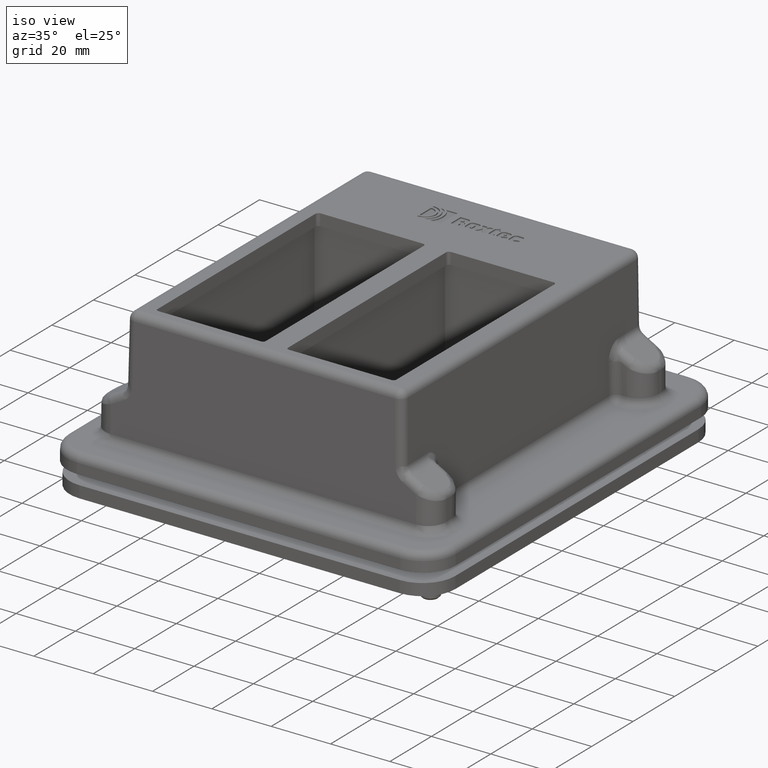
[diagram: clean part render]
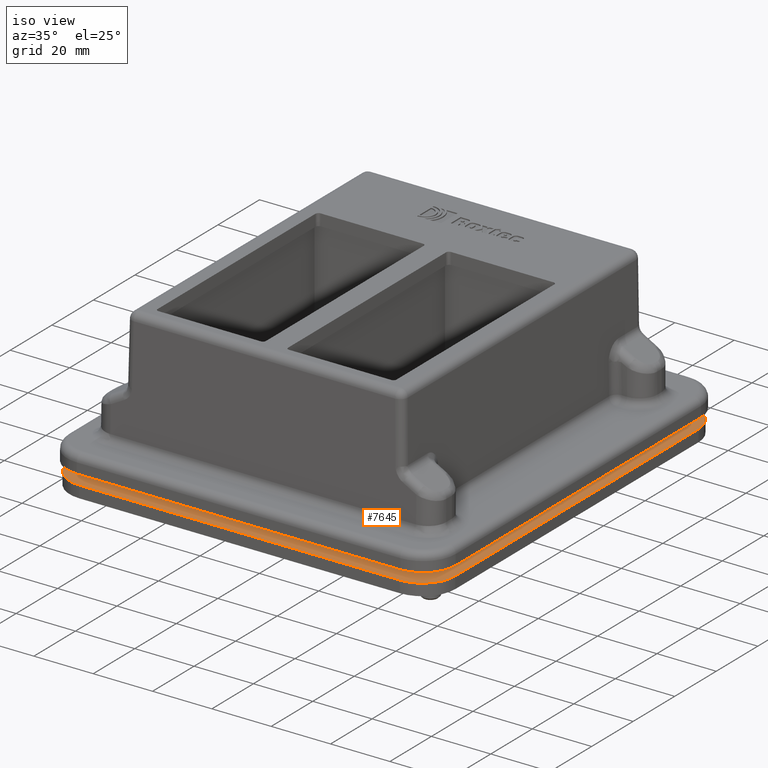
[diagram: same view with one face highlighted and labeled with its STEP entity id]
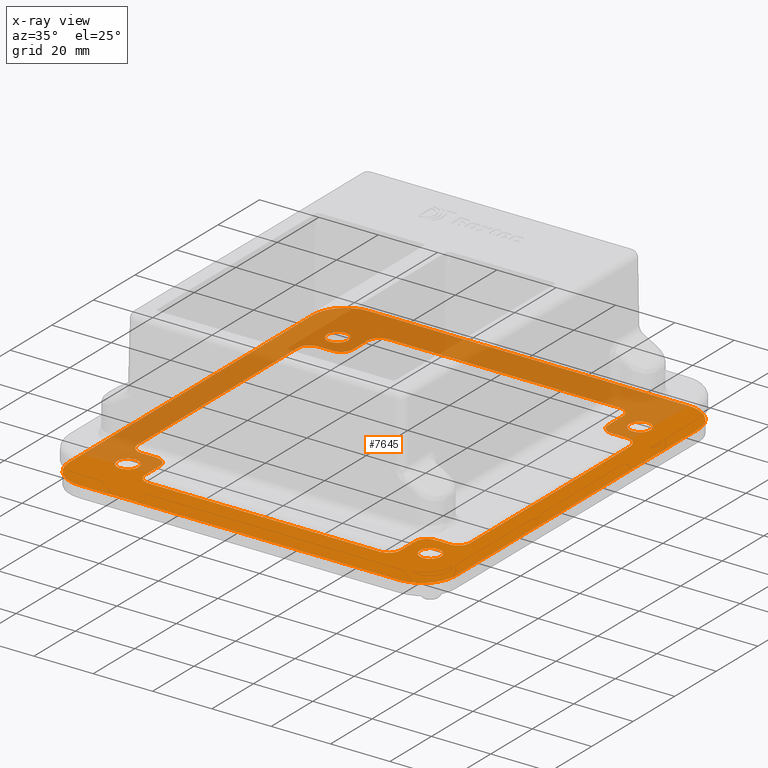
[diagram: x-ray of the same camera — body ghosted, the highlighted face saturated]
A machine part, iso view. The second image highlights one B-rep face of the part: STEP entity #7645.
The next image is the same camera in x-ray: the body ghosted, the highlighted face saturated — about 48% of this face is hidden behind the body in this view.
In plain terms, the highlighted planar face has unit normal (0, -0, 1).
Its self-contained STEP definition (entity closure, byte-faithful):
#357=LINE('',#11266,#1001);
#359=LINE('',#11271,#1003);
#360=LINE('',#11275,#1004);
#361=LINE('',#11279,#1005);
#362=LINE('',#11283,#1006);
#363=LINE('',#11288,#1007);
#364=LINE('',#11292,#1008);
#365=LINE('',#11296,#1009);
#366=LINE('',#11300,#1010);
#367=LINE('',#11304,#1011);
#368=LINE('',#11308,#1012);
#369=LINE('',#11312,#1013);
#370=LINE('',#11316,#1014);
#371=LINE('',#11320,#1015);
#372=LINE('',#11324,#1016);
#373=LINE('',#11328,#1017);
#1001=VECTOR('',#9053,10.);
#1003=VECTOR('',#9057,10.);
#1004=VECTOR('',#9060,10.);
#1005=VECTOR('',#9063,10.);
#1006=VECTOR('',#9066,10.);
#1007=VECTOR('',#9071,10.);
#1008=VECTOR('',#9074,10.);
#1009=VECTOR('',#9077,10.);
#1010=VECTOR('',#9080,10.);
#1011=VECTOR('',#9083,10.);
#1012=VECTOR('',#9086,10.);
#1013=VECTOR('',#9089,10.);
#1014=VECTOR('',#9092,10.);
#1015=VECTOR('',#9095,10.);
#1016=VECTOR('',#9098,10.);
#1017=VECTOR('',#9101,10.);
#1721=FACE_BOUND('',#2284,.T.);
#1722=FACE_BOUND('',#2285,.T.);
#1723=FACE_BOUND('',#2286,.T.);
#1724=FACE_BOUND('',#2287,.T.);
#1725=FACE_BOUND('',#2288,.T.);
#1830=FACE_OUTER_BOUND('',#2283,.T.);
#2283=EDGE_LOOP('',(#5071,#5072,#5073,#5074,#5075,#5076,#5077,#5078));
#2284=EDGE_LOOP('',(#5079));
#2285=EDGE_LOOP('',(#5080,#5081,#5082,#5083,#5084,#5085,#5086,#5087,#5088,
#5089,#5090,#5091,#5092,#5093,#5094,#5095,#5096,#5097,#5098,#5099,#5100,
#5101,#5102,#5103));
#2286=EDGE_LOOP('',(#5104));
#2287=EDGE_LOOP('',(#5105));
#2288=EDGE_LOOP('',(#5106));
#2763=CIRCLE('',#8178,3.5);
#2764=CIRCLE('',#8181,11.);
#2765=CIRCLE('',#8182,11.);
#2766=CIRCLE('',#8183,11.);
#2767=CIRCLE('',#8184,11.);
#2768=CIRCLE('',#8185,4.);
#2769=CIRCLE('',#8186,4.);
#2770=CIRCLE('',#8187,4.);
#2771=CIRCLE('',#8188,4.);
#2772=CIRCLE('',#8189,4.);
#2773=CIRCLE('',#8190,4.);
#2774=CIRCLE('',#8191,4.);
#2775=CIRCLE('',#8192,4.);
#2776=CIRCLE('',#8193,4.);
#2777=CIRCLE('',#8194,4.);
#2778=CIRCLE('',#8195,4.);
#2779=CIRCLE('',#8196,4.);
#2780=CIRCLE('',#8197,3.5);
#2781=CIRCLE('',#8198,3.5);
#2782=CIRCLE('',#8199,3.5);
#3076=VERTEX_POINT('',#11259);
#3077=VERTEX_POINT('',#11263);
#3078=VERTEX_POINT('',#11265);
#3079=VERTEX_POINT('',#11269);
#3080=VERTEX_POINT('',#11270);
#3081=VERTEX_POINT('',#11272);
#3082=VERTEX_POINT('',#11274);
#3083=VERTEX_POINT('',#11276);
#3084=VERTEX_POINT('',#11278);
#3085=VERTEX_POINT('',#11280);
#3086=VERTEX_POINT('',#11282);
#3087=VERTEX_POINT('',#11285);
#3088=VERTEX_POINT('',#11287);
#3089=VERTEX_POINT('',#11289);
#3090=VERTEX_POINT('',#11291);
#3091=VERTEX_POINT('',#11293);
#3092=VERTEX_POINT('',#11295);
#3093=VERTEX_POINT('',#11297);
#3094=VERTEX_POINT('',#11299);
#3095=VERTEX_POINT('',#11301);
#3096=VERTEX_POINT('',#11303);
#3097=VERTEX_POINT('',#11305);
#3098=VERTEX_POINT('',#11307);
#3099=VERTEX_POINT('',#11309);
#3100=VERTEX_POINT('',#11311);
#3101=VERTEX_POINT('',#11313);
#3102=VERTEX_POINT('',#11315);
#3103=VERTEX_POINT('',#11317);
#3104=VERTEX_POINT('',#11319);
#3105=VERTEX_POINT('',#11321);
#3106=VERTEX_POINT('',#11323);
#3107=VERTEX_POINT('',#11325);
#3108=VERTEX_POINT('',#11327);
#3109=VERTEX_POINT('',#11330);
#3110=VERTEX_POINT('',#11332);
#3111=VERTEX_POINT('',#11334);
#3828=EDGE_CURVE('',#3076,#3076,#2763,.T.);
#3830=EDGE_CURVE('',#3078,#3077,#357,.T.);
#3832=EDGE_CURVE('',#3079,#3080,#359,.T.);
#3833=EDGE_CURVE('',#3081,#3080,#2764,.T.);
#3834=EDGE_CURVE('',#3081,#3082,#360,.T.);
#3835=EDGE_CURVE('',#3083,#3082,#2765,.T.);
#3836=EDGE_CURVE('',#3083,#3084,#361,.T.);
#3837=EDGE_CURVE('',#3085,#3084,#2766,.T.);
#3838=EDGE_CURVE('',#3085,#3086,#362,.T.);
#3839=EDGE_CURVE('',#3079,#3086,#2767,.T.);
#3840=EDGE_CURVE('',#3087,#3077,#2768,.T.);
#3841=EDGE_CURVE('',#3087,#3088,#363,.T.);
#3842=EDGE_CURVE('',#3089,#3088,#2769,.T.);
#3843=EDGE_CURVE('',#3089,#3090,#364,.T.);
#3844=EDGE_CURVE('',#3091,#3090,#2770,.T.);
#3845=EDGE_CURVE('',#3091,#3092,#365,.T.);
#3846=EDGE_CURVE('',#3093,#3092,#2771,.T.);
#3847=EDGE_CURVE('',#3093,#3094,#366,.T.);
#3848=EDGE_CURVE('',#3095,#3094,#2772,.T.);
#3849=EDGE_CURVE('',#3095,#3096,#367,.T.);
#3850=EDGE_CURVE('',#3097,#3096,#2773,.T.);
#3851=EDGE_CURVE('',#3097,#3098,#368,.T.);
#3852=EDGE_CURVE('',#3099,#3098,#2774,.T.);
#3853=EDGE_CURVE('',#3099,#3100,#369,.T.);
#3854=EDGE_CURVE('',#3101,#3100,#2775,.T.);
#3855=EDGE_CURVE('',#3101,#3102,#370,.T.);
#3856=EDGE_CURVE('',#3103,#3102,#2776,.T.);
#3857=EDGE_CURVE('',#3103,#3104,#371,.T.);
#3858=EDGE_CURVE('',#3105,#3104,#2777,.T.);
#3859=EDGE_CURVE('',#3105,#3106,#372,.T.);
#3860=EDGE_CURVE('',#3107,#3106,#2778,.T.);
#3861=EDGE_CURVE('',#3107,#3108,#373,.T.);
#3862=EDGE_CURVE('',#3078,#3108,#2779,.T.);
#3863=EDGE_CURVE('',#3109,#3109,#2780,.T.);
#3864=EDGE_CURVE('',#3110,#3110,#2781,.T.);
#3865=EDGE_CURVE('',#3111,#3111,#2782,.T.);
#5071=ORIENTED_EDGE('',*,*,#3832,.T.);
#5072=ORIENTED_EDGE('',*,*,#3833,.F.);
#5073=ORIENTED_EDGE('',*,*,#3834,.T.);
#5074=ORIENTED_EDGE('',*,*,#3835,.F.);
#5075=ORIENTED_EDGE('',*,*,#3836,.T.);
#5076=ORIENTED_EDGE('',*,*,#3837,.F.);
#5077=ORIENTED_EDGE('',*,*,#3838,.T.);
#5078=ORIENTED_EDGE('',*,*,#3839,.F.);
#5079=ORIENTED_EDGE('',*,*,#3828,.T.);
#5080=ORIENTED_EDGE('',*,*,#3830,.T.);
#5081=ORIENTED_EDGE('',*,*,#3840,.F.);
#5082=ORIENTED_EDGE('',*,*,#3841,.T.);
#5083=ORIENTED_EDGE('',*,*,#3842,.F.);
#5084=ORIENTED_EDGE('',*,*,#3843,.T.);
#5085=ORIENTED_EDGE('',*,*,#3844,.F.);
#5086=ORIENTED_EDGE('',*,*,#3845,.T.);
#5087=ORIENTED_EDGE('',*,*,#3846,.F.);
#5088=ORIENTED_EDGE('',*,*,#3847,.T.);
#5089=ORIENTED_EDGE('',*,*,#3848,.F.);
#5090=ORIENTED_EDGE('',*,*,#3849,.T.);
#5091=ORIENTED_EDGE('',*,*,#3850,.F.);
#5092=ORIENTED_EDGE('',*,*,#3851,.T.);
#5093=ORIENTED_EDGE('',*,*,#3852,.F.);
#5094=ORIENTED_EDGE('',*,*,#3853,.T.);
#5095=ORIENTED_EDGE('',*,*,#3854,.F.);
#5096=ORIENTED_EDGE('',*,*,#3855,.T.);
#5097=ORIENTED_EDGE('',*,*,#3856,.F.);
#5098=ORIENTED_EDGE('',*,*,#3857,.T.);
#5099=ORIENTED_EDGE('',*,*,#3858,.F.);
#5100=ORIENTED_EDGE('',*,*,#3859,.T.);
#5101=ORIENTED_EDGE('',*,*,#3860,.F.);
#5102=ORIENTED_EDGE('',*,*,#3861,.T.);
#5103=ORIENTED_EDGE('',*,*,#3862,.F.);
#5104=ORIENTED_EDGE('',*,*,#3863,.T.);
#5105=ORIENTED_EDGE('',*,*,#3864,.T.);
#5106=ORIENTED_EDGE('',*,*,#3865,.T.);
#6941=PLANE('',#8180);
#7645=ADVANCED_FACE('',(#1830,#1721,#1722,#1723,#1724,#1725),#6941,.T.);
#8178=AXIS2_PLACEMENT_3D('',#11261,#9048,#9049);
#8180=AXIS2_PLACEMENT_3D('',#11268,#9055,#9056);
#8181=AXIS2_PLACEMENT_3D('',#11273,#9058,#9059);
#8182=AXIS2_PLACEMENT_3D('',#11277,#9061,#9062);
#8183=AXIS2_PLACEMENT_3D('',#11281,#9064,#9065);
#8184=AXIS2_PLACEMENT_3D('',#11284,#9067,#9068);
#8185=AXIS2_PLACEMENT_3D('',#11286,#9069,#9070);
#8186=AXIS2_PLACEMENT_3D('',#11290,#9072,#9073);
#8187=AXIS2_PLACEMENT_3D('',#11294,#9075,#9076);
#8188=AXIS2_PLACEMENT_3D('',#11298,#9078,#9079);
#8189=AXIS2_PLACEMENT_3D('',#11302,#9081,#9082);
#8190=AXIS2_PLACEMENT_3D('',#11306,#9084,#9085);
#8191=AXIS2_PLACEMENT_3D('',#11310,#9087,#9088);
#8192=AXIS2_PLACEMENT_3D('',#11314,#9090,#9091);
#8193=AXIS2_PLACEMENT_3D('',#11318,#9093,#9094);
#8194=AXIS2_PLACEMENT_3D('',#11322,#9096,#9097);
#8195=AXIS2_PLACEMENT_3D('',#11326,#9099,#9100);
#8196=AXIS2_PLACEMENT_3D('',#11329,#9102,#9103);
#8197=AXIS2_PLACEMENT_3D('',#11331,#9104,#9105);
#8198=AXIS2_PLACEMENT_3D('',#11333,#9106,#9107);
#8199=AXIS2_PLACEMENT_3D('',#11335,#9108,#9109);
#9048=DIRECTION('center_axis',(-8.75497575075085E-19,1.32569129620573E-48,
-1.));
#9049=DIRECTION('ref_axis',(1.63131981634558E-17,-1.,-1.42821654338262E-35));
#9053=DIRECTION('',(1.,1.38777878078191E-16,-8.75497575075085E-19));
#9055=DIRECTION('center_axis',(8.75497575075085E-19,-1.32569129620573E-48,
1.));
#9056=DIRECTION('ref_axis',(1.63131981634558E-17,-1.,-1.42821654338262E-35));
#9057=DIRECTION('',(-1.,-6.62261139763547E-16,8.75497575075085E-19));
#9058=DIRECTION('center_axis',(-8.75497575075085E-19,1.32569129620573E-48,
-1.));
#9059=DIRECTION('ref_axis',(-0.707106781186548,0.707106781186547,6.19070272247971E-19));
#9060=DIRECTION('',(1.38777878078191E-16,-1.,-1.21499695731523E-34));
#9061=DIRECTION('center_axis',(-8.75497575075085E-19,1.32569129620573E-48,
-1.));
#9062=DIRECTION('ref_axis',(-0.707106781186547,-0.707106781186548,6.19070272247971E-19));
#9063=DIRECTION('',(1.,9.30456750273975E-17,-8.75497575075085E-19));
#9064=DIRECTION('center_axis',(-8.75497575075085E-19,1.32569129620573E-48,
-1.));
#9065=DIRECTION('ref_axis',(0.707106781186548,-0.707106781186548,-6.19070272247971E-19));
#9066=DIRECTION('',(-1.63131981634558E-17,1.,1.42821654338262E-35));
#9067=DIRECTION('center_axis',(-8.75497575075085E-19,1.32569129620573E-48,
-1.));
#9068=DIRECTION('ref_axis',(0.707106781186547,0.707106781186548,-6.19070272247971E-19));
#9069=DIRECTION('center_axis',(8.75497575075085E-19,-1.32569129620573E-48,
1.));
#9070=DIRECTION('ref_axis',(0.707106781186548,0.707106781186548,-6.19070272247971E-19));
#9071=DIRECTION('',(6.43262670892956E-16,-1.,-5.63174908503107E-34));
#9072=DIRECTION('center_axis',(8.75497575075085E-19,-1.32569129620573E-48,
1.));
#9073=DIRECTION('ref_axis',(0.707106781186549,-0.707106781186546,-6.19070272247972E-19));
#9074=DIRECTION('',(-1.,-1.63131981634558E-17,8.75497575075085E-19));
#9075=DIRECTION('center_axis',(-8.75497575075085E-19,1.32569129620573E-48,
-1.));
#9076=DIRECTION('ref_axis',(-0.707106781186548,0.707106781186548,6.19070272247971E-19));
#9077=DIRECTION('',(1.63131981634558E-17,-1.,-1.42821654338262E-35));
#9078=DIRECTION('center_axis',(8.75497575075085E-19,-1.32569129620573E-48,
1.));
#9079=DIRECTION('ref_axis',(0.707106781186548,-0.707106781186548,-6.19070272247971E-19));
#9080=DIRECTION('',(-1.,-6.35972560744939E-16,8.75497575075085E-19));
#9081=DIRECTION('center_axis',(8.75497575075085E-19,-1.32569129620573E-48,
1.));
#9082=DIRECTION('ref_axis',(-0.707106781186547,-0.707106781186548,6.19070272247971E-19));
#9083=DIRECTION('',(-1.63131981634558E-17,1.,1.42821654338262E-35));
#9084=DIRECTION('center_axis',(-8.75497575075085E-19,1.32569129620573E-48,
-1.));
#9085=DIRECTION('ref_axis',(0.707106781186548,0.707106781186548,-6.19070272247971E-19));
#9086=DIRECTION('',(-1.,-1.63131981634558E-17,8.75497575075085E-19));
#9087=DIRECTION('center_axis',(8.75497575075085E-19,-1.32569129620573E-48,
1.));
#9088=DIRECTION('ref_axis',(-0.707106781186547,-0.707106781186548,6.19070272247971E-19));
#9089=DIRECTION('',(-7.65727350807691E-16,1.,6.70392438800804E-34));
#9090=DIRECTION('center_axis',(8.75497575075085E-19,-1.32569129620573E-48,
1.));
#9091=DIRECTION('ref_axis',(-0.707106781186549,0.707106781186546,6.19070272247972E-19));
#9092=DIRECTION('',(1.,1.38777878078191E-16,-8.75497575075085E-19));
#9093=DIRECTION('center_axis',(-8.75497575075085E-19,1.32569129620573E-48,
-1.));
#9094=DIRECTION('ref_axis',(0.707106781186548,-0.707106781186547,-6.19070272247971E-19));
#9095=DIRECTION('',(-1.38777878078191E-16,1.,1.21499695731523E-34));
#9096=DIRECTION('center_axis',(8.75497575075085E-19,-1.32569129620573E-48,
1.));
#9097=DIRECTION('ref_axis',(-0.707106781186548,0.707106781186547,6.19070272247971E-19));
#9098=DIRECTION('',(1.,7.58437240659674E-16,-8.75497575075085E-19));
#9099=DIRECTION('center_axis',(8.75497575075085E-19,-1.32569129620573E-48,
1.));
#9100=DIRECTION('ref_axis',(0.707106781186547,0.707106781186548,-6.19070272247971E-19));
#9101=DIRECTION('',(1.38777878078191E-16,-1.,-1.21499695731523E-34));
#9102=DIRECTION('center_axis',(-8.75497575075085E-19,1.32569129620573E-48,
-1.));
#9103=DIRECTION('ref_axis',(-0.707106781186547,-0.707106781186548,6.19070272247971E-19));
#9104=DIRECTION('center_axis',(-8.75497575075085E-19,1.32569129620573E-48,
-1.));
#9105=DIRECTION('ref_axis',(1.63131981634558E-17,-1.,-1.42821654338262E-35));
#9106=DIRECTION('center_axis',(-8.75497575075085E-19,1.32569129620573E-48,
-1.));
#9107=DIRECTION('ref_axis',(-1.38777878078191E-16,1.,1.21499695731523E-34));
#9108=DIRECTION('center_axis',(-8.75497575075085E-19,1.32569129620573E-48,
-1.));
#9109=DIRECTION('ref_axis',(1.63131981634558E-17,-1.,-1.42821654338262E-35));
#11259=CARTESIAN_POINT('',(51.,54.,-46.5));
#11261=CARTESIAN_POINT('Origin',(51.,50.5,-46.5));
#11263=CARTESIAN_POINT('',(52.,42.5,-46.5));
#11265=CARTESIAN_POINT('',(47.,42.5,-46.5));
#11266=CARTESIAN_POINT('',(43.,42.5,-46.5));
#11268=CARTESIAN_POINT('Origin',(7.12499999999998,-9.87525307079197E-15,
-46.5));
#11269=CARTESIAN_POINT('',(54.,69.5,-46.5));
#11270=CARTESIAN_POINT('',(-54.,69.5,-46.5));
#11271=CARTESIAN_POINT('',(65.,69.5,-46.5));
#11272=CARTESIAN_POINT('',(-65.,58.5,-46.5));
#11273=CARTESIAN_POINT('Origin',(-54.,58.5,-46.5));
#11274=CARTESIAN_POINT('',(-65.,-58.5,-46.5));
#11275=CARTESIAN_POINT('',(-65.,69.5,-46.5));
#11276=CARTESIAN_POINT('',(-54.,-69.5,-46.5));
#11277=CARTESIAN_POINT('Origin',(-54.,-58.5,-46.5));
#11278=CARTESIAN_POINT('',(54.,-69.5,-46.5));
#11279=CARTESIAN_POINT('',(-50.75,-69.5,-46.5));
#11280=CARTESIAN_POINT('',(65.,-58.5,-46.5));
#11281=CARTESIAN_POINT('Origin',(54.,-58.5,-46.5));
#11282=CARTESIAN_POINT('',(65.,58.5,-46.5));
#11283=CARTESIAN_POINT('',(65.,-69.5,-46.5));
#11284=CARTESIAN_POINT('Origin',(54.,58.5,-46.5));
#11285=CARTESIAN_POINT('',(56.,38.5,-46.5));
#11286=CARTESIAN_POINT('Origin',(52.,38.5,-46.5));
#11287=CARTESIAN_POINT('',(56.,-38.5,-46.5));
#11288=CARTESIAN_POINT('',(56.,42.5,-46.5));
#11289=CARTESIAN_POINT('',(52.,-42.5,-46.5));
#11290=CARTESIAN_POINT('Origin',(52.,-38.5,-46.5));
#11291=CARTESIAN_POINT('',(47.,-42.5,-46.5));
#11292=CARTESIAN_POINT('',(56.,-42.5,-46.5));
#11293=CARTESIAN_POINT('',(43.,-46.5,-46.5));
#11294=CARTESIAN_POINT('Origin',(47.,-46.5,-46.5));
#11295=CARTESIAN_POINT('',(43.,-53.5,-46.5));
#11296=CARTESIAN_POINT('',(43.,-42.5,-46.5));
#11297=CARTESIAN_POINT('',(39.,-57.5,-46.5));
#11298=CARTESIAN_POINT('Origin',(39.,-53.5,-46.5));
#11299=CARTESIAN_POINT('',(-39.,-57.5,-46.5));
#11300=CARTESIAN_POINT('',(43.,-57.5,-46.5));
#11301=CARTESIAN_POINT('',(-43.,-53.5,-46.5));
#11302=CARTESIAN_POINT('Origin',(-39.,-53.5,-46.5));
#11303=CARTESIAN_POINT('',(-43.,-46.5,-46.5));
#11304=CARTESIAN_POINT('',(-43.,-57.5,-46.5));
#11305=CARTESIAN_POINT('',(-47.,-42.5,-46.5));
#11306=CARTESIAN_POINT('Origin',(-47.,-46.5,-46.5));
#11307=CARTESIAN_POINT('',(-52.,-42.5,-46.5));
#11308=CARTESIAN_POINT('',(-43.,-42.5,-46.5));
#11309=CARTESIAN_POINT('',(-56.,-38.5,-46.5));
#11310=CARTESIAN_POINT('Origin',(-52.,-38.5,-46.5));
#11311=CARTESIAN_POINT('',(-56.,38.5,-46.5));
#11312=CARTESIAN_POINT('',(-56.,-42.5,-46.5));
#11313=CARTESIAN_POINT('',(-52.,42.5,-46.5));
#11314=CARTESIAN_POINT('Origin',(-52.,38.5,-46.5));
#11315=CARTESIAN_POINT('',(-47.,42.5,-46.5));
#11316=CARTESIAN_POINT('',(-56.,42.5,-46.5));
#11317=CARTESIAN_POINT('',(-43.,46.5,-46.5));
#11318=CARTESIAN_POINT('Origin',(-47.,46.5,-46.5));
#11319=CARTESIAN_POINT('',(-43.,53.5,-46.5));
#11320=CARTESIAN_POINT('',(-43.,42.5,-46.5));
#11321=CARTESIAN_POINT('',(-39.,57.5,-46.5));
#11322=CARTESIAN_POINT('Origin',(-39.,53.5,-46.5));
#11323=CARTESIAN_POINT('',(39.,57.5,-46.5));
#11324=CARTESIAN_POINT('',(-43.,57.5,-46.5));
#11325=CARTESIAN_POINT('',(43.,53.5,-46.5));
#11326=CARTESIAN_POINT('Origin',(39.,53.5,-46.5));
#11327=CARTESIAN_POINT('',(43.,46.5,-46.5));
#11328=CARTESIAN_POINT('',(43.,57.5,-46.5));
#11329=CARTESIAN_POINT('Origin',(47.,46.5,-46.5));
#11330=CARTESIAN_POINT('',(-51.,-47.,-46.5));
#11331=CARTESIAN_POINT('Origin',(-51.,-50.5,-46.5));
#11332=CARTESIAN_POINT('',(-51.,47.,-46.5));
#11333=CARTESIAN_POINT('Origin',(-51.,50.5,-46.5));
#11334=CARTESIAN_POINT('',(51.,-47.,-46.5));
#11335=CARTESIAN_POINT('Origin',(51.,-50.5,-46.5));